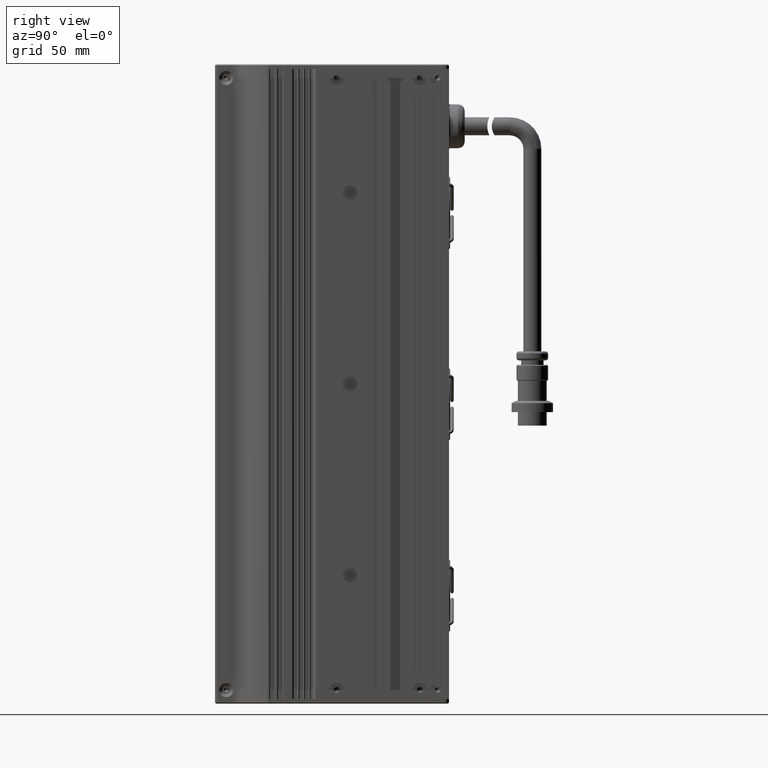
[diagram: clean part render]
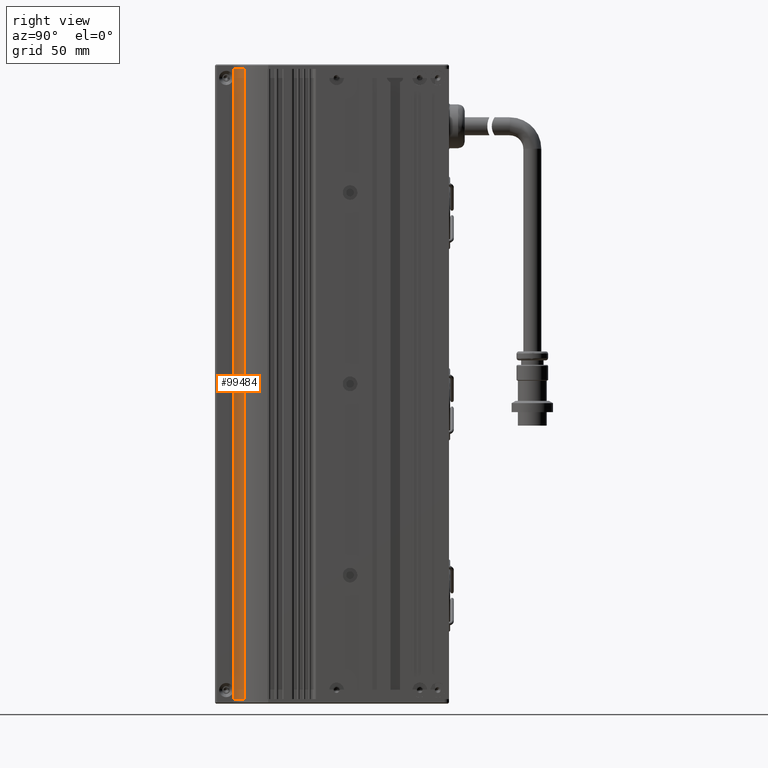
[diagram: same view with one face highlighted and labeled with its STEP entity id]
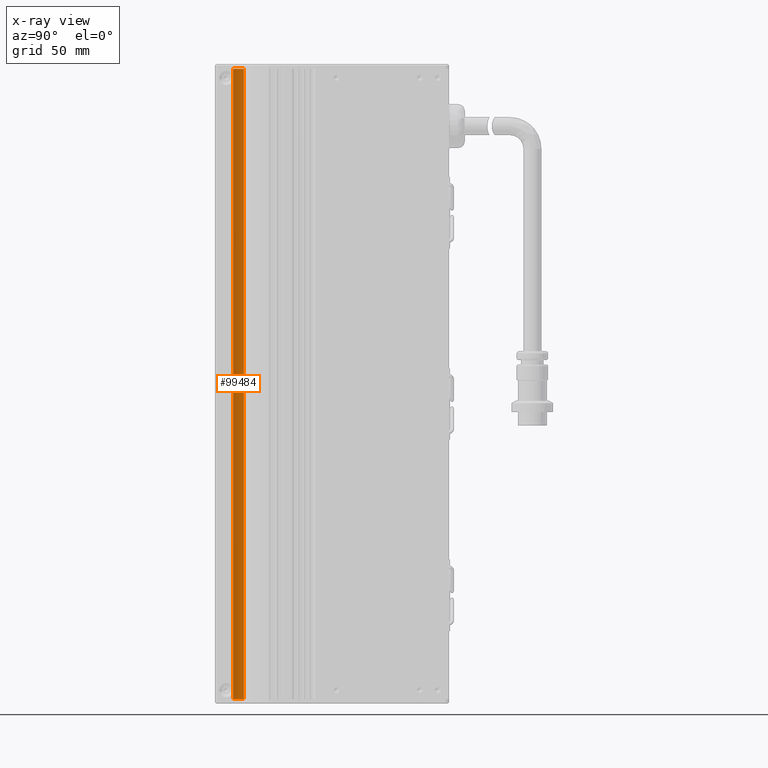
[diagram: x-ray of the same camera — body ghosted, the highlighted face saturated]
A machine part, right view. The second image highlights one B-rep face of the part: STEP entity #99484.
The next image is the same camera in x-ray: the body ghosted, the highlighted face saturated — about 0% of this face is hidden behind the body in this view.
In plain terms, the highlighted cylindrical surface (edge-blend (fillet) strip) has radius 6 mm, axis along (0, 0, 1).
Its self-contained STEP definition (entity closure, byte-faithful):
#1327 = LINE ( 'NONE', #71980, #13788 ) ;
#1859 = ORIENTED_EDGE ( 'NONE', *, *, #78406, .F. ) ;
#5431 = LINE ( 'NONE', #55028, #105921 ) ;
#5603 = CARTESIAN_POINT ( 'NONE',  ( -22.66201180637545300, -51.91295114031457600, -140.0000000000000000 ) ) ;
#9782 = ORIENTED_EDGE ( 'NONE', *, *, #106725, .F. ) ;
#13788 = VECTOR ( 'NONE', #89690, 1000.000000000000000 ) ;
#14111 = CYLINDRICAL_SURFACE ( 'NONE', #25507, 6.000000000000005300 ) ;
#14310 = VECTOR ( 'NONE', #37867, 1000.000000000000000 ) ;
#15592 = EDGE_CURVE ( 'NONE', #66753, #58597, #1327, .T. ) ;
#17635 = CARTESIAN_POINT ( 'NONE',  ( -22.66201180635384900, -51.91295114031457600, -136.6484918976122500 ) ) ;
#18594 = CARTESIAN_POINT ( 'NONE',  ( -22.66201180637545300, -51.91295114031457600, -140.0000000000000000 ) ) ;
#19859 = CARTESIAN_POINT ( 'NONE',  ( -22.66201180638227100, -51.91295114031454000, 136.6484918976332800 ) ) ;
#21787 = AXIS2_PLACEMENT_3D ( 'NONE', #96908, #105658, #37415 ) ;
#25507 = AXIS2_PLACEMENT_3D ( 'NONE', #70674, #41449, #70232 ) ;
#25732 = CIRCLE ( 'NONE', #21787, 6.000000000000005300 ) ;
#26087 = CARTESIAN_POINT ( 'NONE',  ( -22.66201180635384900, -51.91295114031457600, -135.3515081023877800 ) ) ;
#28148 = EDGE_CURVE ( 'NONE', #95496, #74160, #36259, .T. ) ;
#29394 = DIRECTION ( 'NONE',  ( -0.0000000000000000000, -1.665334536937734300E-016, -1.000000000000000000 ) ) ;
#29927 = VERTEX_POINT ( 'NONE', #76627 ) ;
#31566 = VECTOR ( 'NONE', #29394, 1000.000000000000000 ) ;
#32438 = CARTESIAN_POINT ( 'NONE',  ( -20.30356058373321200, -47.14439554117093000, -140.0000000000000000 ) ) ;
#35434 = DIRECTION ( 'NONE',  ( -0.0000000000000000000, -1.665334536937734300E-016, -1.000000000000000000 ) ) ;
#35509 = EDGE_LOOP ( 'NONE', ( #65933, #41965, #43890, #9782, #87233, #1859, #108896, #41019 ) ) ;
#36259 = LINE ( 'NONE', #18594, #31566 ) ;
#37415 = DIRECTION ( 'NONE',  ( 1.000000000000000000, 0.0000000000000000000, 0.0000000000000000000 ) ) ;
#37867 = DIRECTION ( 'NONE',  ( 0.0000000000000000000, 1.665334536937734300E-016, 1.000000000000000000 ) ) ;
#41019 = ORIENTED_EDGE ( 'NONE', *, *, #49193, .T. ) ;
#41449 = DIRECTION ( 'NONE',  ( 0.0000000000000000000, 1.665334536937734300E-016, 1.000000000000000000 ) ) ;
#41965 = ORIENTED_EDGE ( 'NONE', *, *, #95484, .F. ) ;
#42468 = VECTOR ( 'NONE', #35434, 1000.000000000000000 ) ;
#43635 = VERTEX_POINT ( 'NONE', #89754 ) ;
#43890 = ORIENTED_EDGE ( 'NONE', *, *, #89935, .T. ) ;
#47305 = CARTESIAN_POINT ( 'NONE',  ( -22.66201180637545000, -51.91295114031457600, -140.0000000000000000 ) ) ;
#49193 = EDGE_CURVE ( 'NONE', #81121, #66753, #110100, .T. ) ;
#51886 = EDGE_CURVE ( 'NONE', #81121, #43635, #56216, .T. ) ;
#55028 = CARTESIAN_POINT ( 'NONE',  ( -22.66201180637545000, -51.91295114031457600, -140.0000000000000000 ) ) ;
#56216 = LINE ( 'NONE', #32438, #71615 ) ;
#58597 = VERTEX_POINT ( 'NONE', #19859 ) ;
#62108 = DIRECTION ( 'NONE',  ( -0.0000000000000000000, -1.665334536937734300E-016, -1.000000000000000000 ) ) ;
#65933 = ORIENTED_EDGE ( 'NONE', *, *, #15592, .T. ) ;
#66724 = LINE ( 'NONE', #47305, #14310 ) ;
#66753 = VERTEX_POINT ( 'NONE', #83457 ) ;
#70232 = DIRECTION ( 'NONE',  ( 1.000000000000000000, 0.0000000000000000000, 0.0000000000000000000 ) ) ;
#70674 = CARTESIAN_POINT ( 'NONE',  ( -16.66201180637544300, -51.91295114031457600, -140.0000000000000000 ) ) ;
#71615 = VECTOR ( 'NONE', #62108, 1000.000000000000000 ) ;
#71980 = CARTESIAN_POINT ( 'NONE',  ( -22.66201180637545300, -51.91295114031457600, -140.0000000000000000 ) ) ;
#74160 = VERTEX_POINT ( 'NONE', #98668 ) ;
#76627 = CARTESIAN_POINT ( 'NONE',  ( -22.66201180638227100, -51.91295114031454000, 135.3515081023666900 ) ) ;
#78406 = EDGE_CURVE ( 'NONE', #43635, #74160, #25732, .T. ) ;
#79885 = VERTEX_POINT ( 'NONE', #26087 ) ;
#81121 = VERTEX_POINT ( 'NONE', #102609 ) ;
#83457 = CARTESIAN_POINT ( 'NONE',  ( -22.66201180637545300, -51.91295114031454000, 140.0000000000000000 ) ) ;
#87233 = ORIENTED_EDGE ( 'NONE', *, *, #28148, .T. ) ;
#89690 = DIRECTION ( 'NONE',  ( -0.0000000000000000000, -1.665334536937734300E-016, -1.000000000000000000 ) ) ;
#89754 = CARTESIAN_POINT ( 'NONE',  ( -20.30356058373321200, -47.14439554117093000, -140.0000000000000000 ) ) ;
#89935 = EDGE_CURVE ( 'NONE', #29927, #79885, #96403, .T. ) ;
#92753 = FACE_OUTER_BOUND ( 'NONE', #35509, .T. ) ;
#95484 = EDGE_CURVE ( 'NONE', #29927, #58597, #66724, .T. ) ;
#95496 = VERTEX_POINT ( 'NONE', #17635 ) ;
#95743 = DIRECTION ( 'NONE',  ( 1.000000000000000000, 0.0000000000000000000, 0.0000000000000000000 ) ) ;
#96403 = LINE ( 'NONE', #5603, #42468 ) ;
#96908 = CARTESIAN_POINT ( 'NONE',  ( -16.66201180637544300, -51.91295114031457600, -140.0000000000000000 ) ) ;
#98668 = CARTESIAN_POINT ( 'NONE',  ( -22.66201180637545300, -51.91295114031457600, -140.0000000000000000 ) ) ;
#99484 = ADVANCED_FACE ( 'NONE', ( #92753 ), #14111, .F. ) ;
#102609 = CARTESIAN_POINT ( 'NONE',  ( -20.30356058373321200, -47.14439554117089400, 140.0000000000000000 ) ) ;
#105338 = CARTESIAN_POINT ( 'NONE',  ( -16.66201180637544300, -51.91295114031454000, 140.0000000000000000 ) ) ;
#105658 = DIRECTION ( 'NONE',  ( 0.0000000000000000000, 1.665334536937734300E-016, 1.000000000000000000 ) ) ;
#105921 = VECTOR ( 'NONE', #124181, 1000.000000000000000 ) ;
#106141 = AXIS2_PLACEMENT_3D ( 'NONE', #105338, #115683, #95743 ) ;
#106725 = EDGE_CURVE ( 'NONE', #95496, #79885, #5431, .T. ) ;
#108896 = ORIENTED_EDGE ( 'NONE', *, *, #51886, .F. ) ;
#110100 = CIRCLE ( 'NONE', #106141, 6.000000000000005300 ) ;
#115683 = DIRECTION ( 'NONE',  ( 0.0000000000000000000, 1.665334536937734300E-016, 1.000000000000000000 ) ) ;
#124181 = DIRECTION ( 'NONE',  ( 0.0000000000000000000, 1.665334536937734300E-016, 1.000000000000000000 ) ) ;